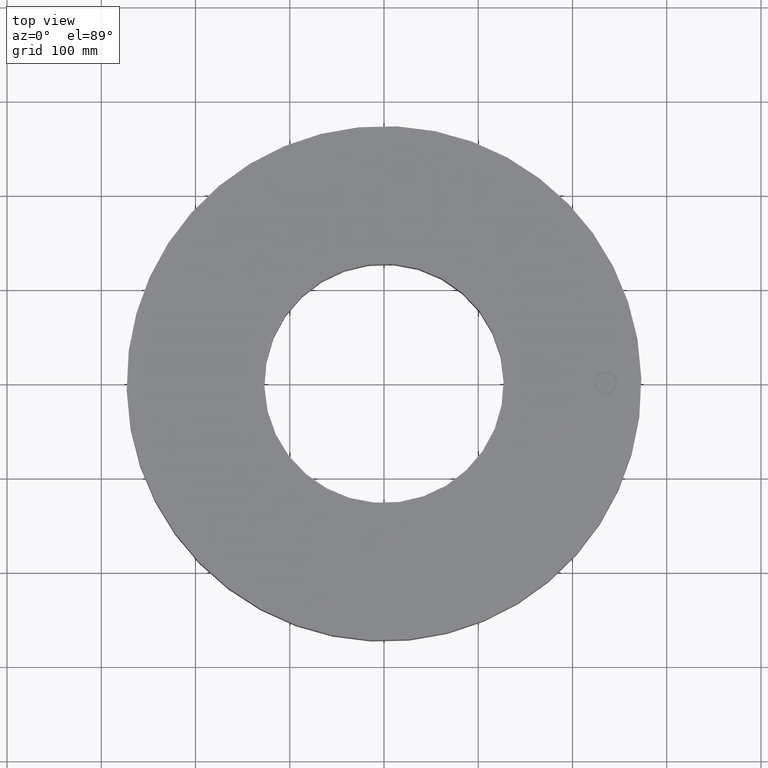
[diagram: clean part render]
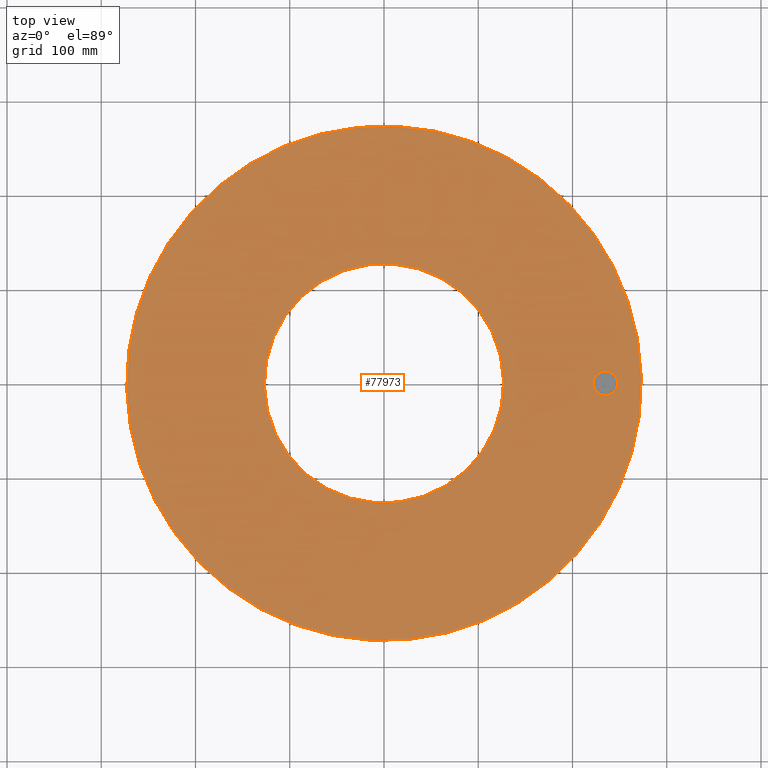
[diagram: same view with one face highlighted and labeled with its STEP entity id]
A machine part, top view. The second image highlights one B-rep face of the part: STEP entity #77973.
In plain terms, the highlighted planar face has unit normal (0, 0, -1).
Its self-contained STEP definition (entity closure, byte-faithful):
#5664=AXIS2_PLACEMENT_3D('Circle Axis2P3D',#5662,#5663,$) ;
#5683=AXIS2_PLACEMENT_3D('Circle Axis2P3D',#5681,#5682,$) ;
#7751=AXIS2_PLACEMENT_3D('Circle Axis2P3D',#7749,#7750,$) ;
#7777=AXIS2_PLACEMENT_3D('Circle Axis2P3D',#7775,#7776,$) ;
#77945=AXIS2_PLACEMENT_3D('Plane Axis2P3D',#77942,#77943,#77944) ;
#77957=AXIS2_PLACEMENT_3D('Circle Axis2P3D',#77955,#77956,$) ;
#77966=AXIS2_PLACEMENT_3D('Circle Axis2P3D',#77964,#77965,$) ;
#5659=CARTESIAN_POINT('Vertex',(-5.15382454002,-9.43401254036,3.00000000001)) ;
#5662=CARTESIAN_POINT('Axis2P3D Location',(0.,0.,3.00000000001)) ;
#5666=CARTESIAN_POINT('Vertex',(5.15382454002,9.43401254036,3.00000000001)) ;
#5681=CARTESIAN_POINT('Axis2P3D Location',(0.,0.,3.00000000001)) ;
#7749=CARTESIAN_POINT('Axis2P3D Location',(0.,0.,3.00000000001)) ;
#7753=CARTESIAN_POINT('Vertex',(2.39712769303,4.38791280947,3.00000000001)) ;
#7755=CARTESIAN_POINT('Vertex',(-2.39712769303,-4.38791280947,3.00000000001)) ;
#7775=CARTESIAN_POINT('Axis2P3D Location',(0.,0.,3.00000000001)) ;
#77942=CARTESIAN_POINT('Axis2P3D Location',(0.,5.00000000002,3.00000000001)) ;
#77955=CARTESIAN_POINT('Axis2P3D Location',(9.25000000004,0.,3.00000000001)) ;
#77959=CARTESIAN_POINT('Vertex',(9.25000000004,-0.499999995002,3.00000000001)) ;
#77961=CARTESIAN_POINT('Vertex',(9.25000000004,0.499999995002,3.00000000001)) ;
#77964=CARTESIAN_POINT('Axis2P3D Location',(9.25000000004,0.,3.00000000001)) ;
#5663=DIRECTION('Axis2P3D Direction',(0.,0.,-0.0393700787402)) ;
#5682=DIRECTION('Axis2P3D Direction',(0.,0.,-0.0393700787402)) ;
#7750=DIRECTION('Axis2P3D Direction',(0.,0.,-0.0393700787402)) ;
#7776=DIRECTION('Axis2P3D Direction',(0.,0.,-0.0393700787402)) ;
#77943=DIRECTION('Axis2P3D Direction',(0.,0.,-0.0393700787402)) ;
#77944=DIRECTION('Axis2P3D XDirection',(0.0393700787402,0.,0.)) ;
#77956=DIRECTION('Axis2P3D Direction',(0.,0.,-0.0393700787402)) ;
#77965=DIRECTION('Axis2P3D Direction',(0.,0.,-0.0393700787402)) ;
#77948=ORIENTED_EDGE('',*,*,#5685,.F.) ;
#77949=ORIENTED_EDGE('',*,*,#5668,.F.) ;
#77952=ORIENTED_EDGE('',*,*,#7779,.T.) ;
#77953=ORIENTED_EDGE('',*,*,#7757,.T.) ;
#77970=ORIENTED_EDGE('',*,*,#77963,.F.) ;
#77971=ORIENTED_EDGE('',*,*,#77968,.F.) ;
#77954=FACE_BOUND('',#77951,.T.) ;
#77972=FACE_BOUND('',#77969,.T.) ;
#77973=ADVANCED_FACE('PartBody',(#77950,#77954,#77972),#77946,.F.) ;
#5665=CIRCLE('generated circle',#5664,10.75) ;
#5684=CIRCLE('generated circle',#5683,10.75) ;
#7752=CIRCLE('generated circle',#7751,5.00000000002) ;
#7778=CIRCLE('generated circle',#7777,5.00000000002) ;
#77958=CIRCLE('generated circle',#77957,0.499999995002) ;
#77967=CIRCLE('generated circle',#77966,0.499999995002) ;
#5668=EDGE_CURVE('',#5660,#5667,#5665,.T.) ;
#5685=EDGE_CURVE('',#5667,#5660,#5684,.T.) ;
#7757=EDGE_CURVE('',#7754,#7756,#7752,.T.) ;
#7779=EDGE_CURVE('',#7756,#7754,#7778,.T.) ;
#77963=EDGE_CURVE('',#77960,#77962,#77958,.F.) ;
#77968=EDGE_CURVE('',#77962,#77960,#77967,.F.) ;
#77947=EDGE_LOOP('',(#77948,#77949)) ;
#77951=EDGE_LOOP('',(#77952,#77953)) ;
#77969=EDGE_LOOP('',(#77970,#77971)) ;
#77950=FACE_OUTER_BOUND('',#77947,.T.) ;
#77946=PLANE('',#77945) ;
#5660=VERTEX_POINT('',#5659) ;
#5667=VERTEX_POINT('',#5666) ;
#7754=VERTEX_POINT('',#7753) ;
#7756=VERTEX_POINT('',#7755) ;
#77960=VERTEX_POINT('',#77959) ;
#77962=VERTEX_POINT('',#77961) ;